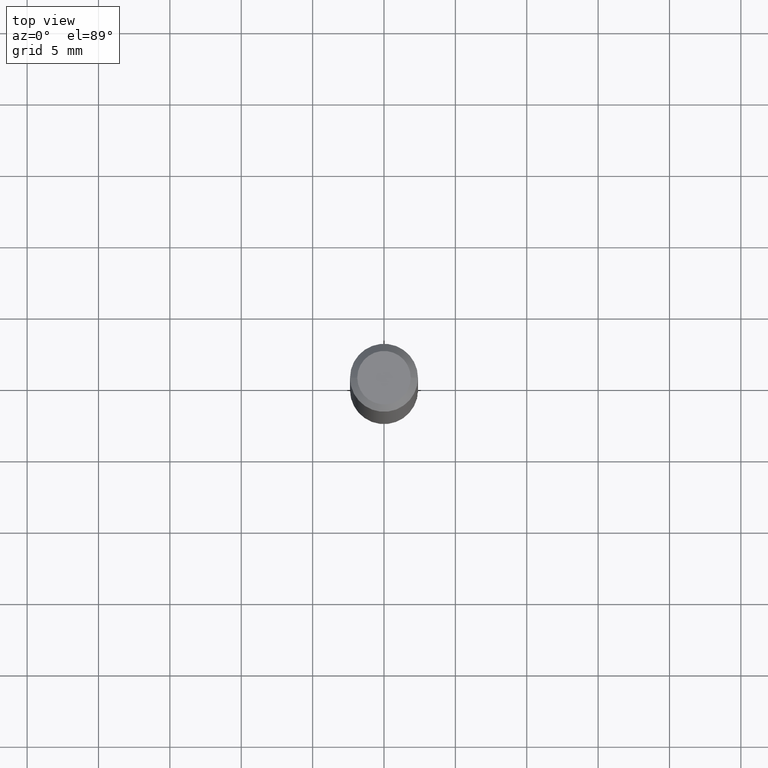
[diagram: clean part render]
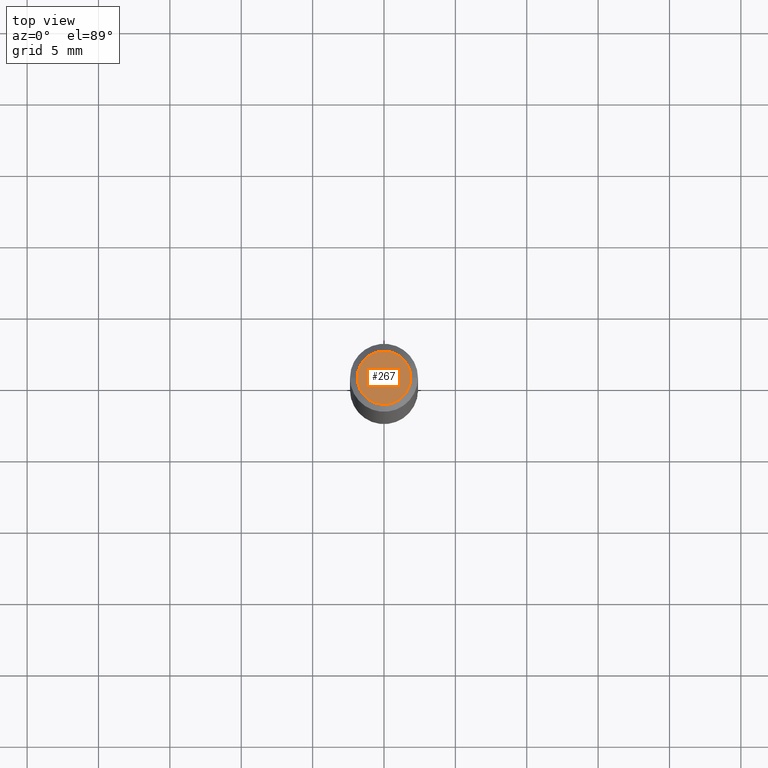
[diagram: same view with one face highlighted and labeled with its STEP entity id]
A machine part, top view. The second image highlights one B-rep face of the part: STEP entity #267.
In plain terms, the highlighted planar face has unit normal (0, -0, -1).
Its self-contained STEP definition (entity closure, byte-faithful):
#5 = EDGE_CURVE ( 'NONE', #209, #166, #145, .T. ) ;
#25 = CARTESIAN_POINT ( 'NONE',  ( 5.219257071676098903E-46, -7.451715851902235727E-32, -2.134256245050205639E-17 ) ) ;
#71 = CARTESIAN_POINT ( 'NONE',  ( -0.07375000000000006550, 5.499083108677936415E-16, -2.134256245050577883E-17 ) ) ;
#81 = CIRCLE ( 'NONE', #229, 0.07375000000000006550 ) ;
#98 = DIRECTION ( 'NONE',  ( -1.000000000000000000, 6.982962677686265922E-15, -4.876176775795935793E-29 ) ) ;
#102 = CARTESIAN_POINT ( 'NONE',  ( 5.219257071676098903E-46, -7.451715851902235727E-32, -2.134256245050205639E-17 ) ) ;
#105 = DIRECTION ( 'NONE',  ( 1.000000000000000000, -6.982962677686265922E-15, 4.878439923190939118E-29 ) ) ;
#145 = CIRCLE ( 'NONE', #163, 0.07375000000000006550 ) ;
#163 = AXIS2_PLACEMENT_3D ( 'NONE', #25, #189, #342 ) ;
#166 = VERTEX_POINT ( 'NONE', #386 ) ;
#167 = EDGE_CURVE ( 'NONE', #166, #209, #81, .T. ) ;
#189 = DIRECTION ( 'NONE',  ( -2.445468806185136597E-29, 3.491481338843145583E-15, 1.000000000000000000 ) ) ;
#206 = ORIENTED_EDGE ( 'NONE', *, *, #5, .T. ) ;
#209 = VERTEX_POINT ( 'NONE', #71 ) ;
#229 = AXIS2_PLACEMENT_3D ( 'NONE', #102, #382, #105 ) ;
#252 = PLANE ( 'NONE',  #315 ) ;
#267 = ADVANCED_FACE ( 'NONE', ( #322 ), #252, .F. ) ;
#293 = ORIENTED_EDGE ( 'NONE', *, *, #167, .T. ) ;
#315 = AXIS2_PLACEMENT_3D ( 'NONE', #414, #379, #98 ) ;
#322 = FACE_OUTER_BOUND ( 'NONE', #387, .T. ) ;
#342 = DIRECTION ( 'NONE',  ( 1.000000000000000000, -6.982962677686265922E-15, 4.878439923190939118E-29 ) ) ;
#379 = DIRECTION ( 'NONE',  ( 2.438088387897960049E-29, -3.491481338843145188E-15, -1.000000000000000000 ) ) ;
#382 = DIRECTION ( 'NONE',  ( -2.445468806185136597E-29, 3.491481338843145583E-15, 1.000000000000000000 ) ) ;
#386 = CARTESIAN_POINT ( 'NONE',  ( 0.07375000000000006550, -6.094815207017975989E-16, -2.134256245049812442E-17 ) ) ;
#387 = EDGE_LOOP ( 'NONE', ( #206, #293 ) ) ;
#414 = CARTESIAN_POINT ( 'NONE',  ( 5.149934974793625841E-16, 0.07375000000000006550, -2.681680299649332462E-16 ) ) ;